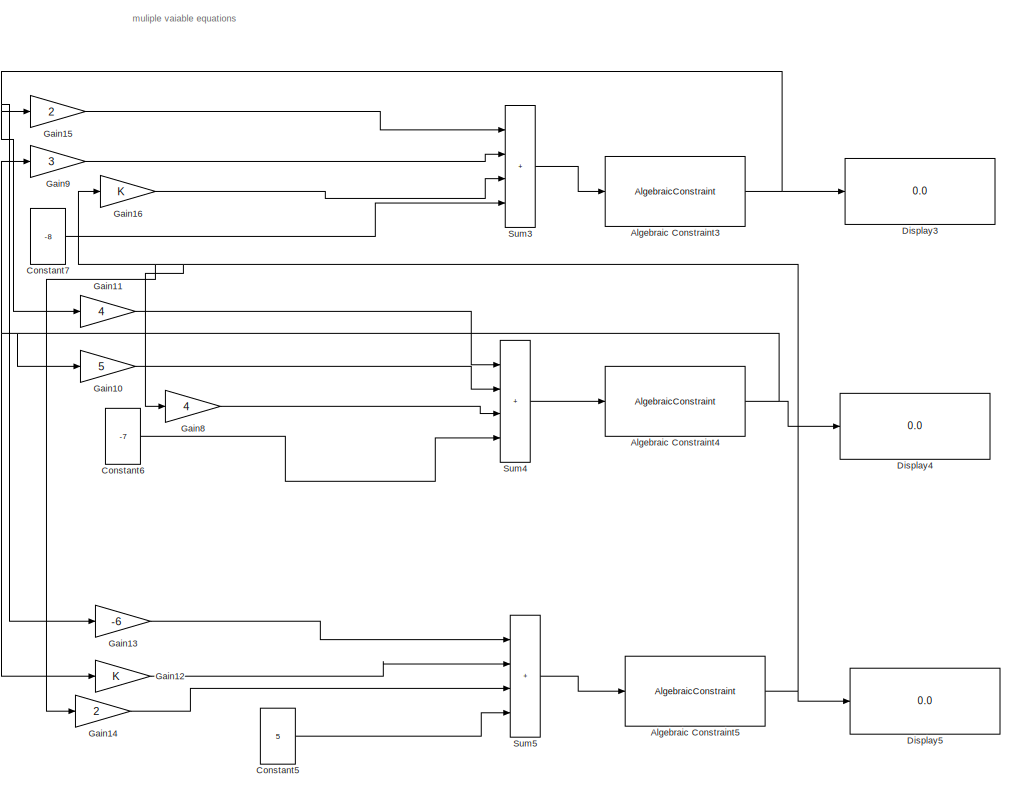
[diagram: root canvas - part 1/3, top right region]
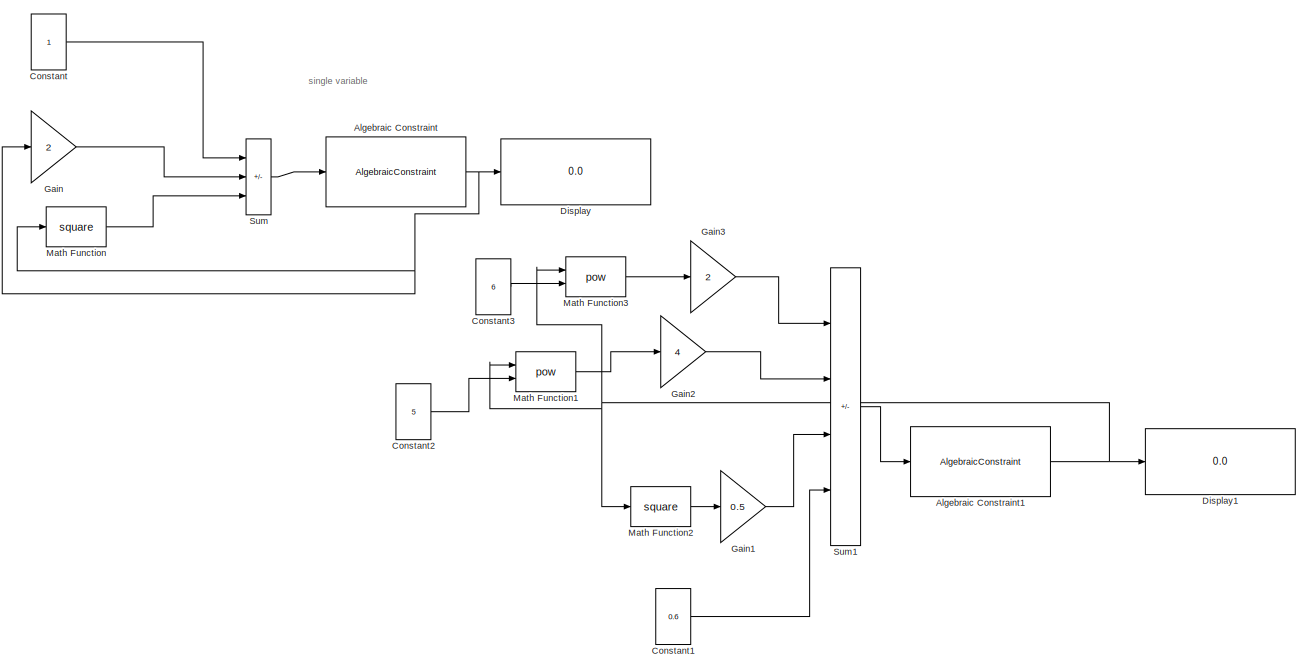
[diagram: root canvas - part 2/3, middle left region]
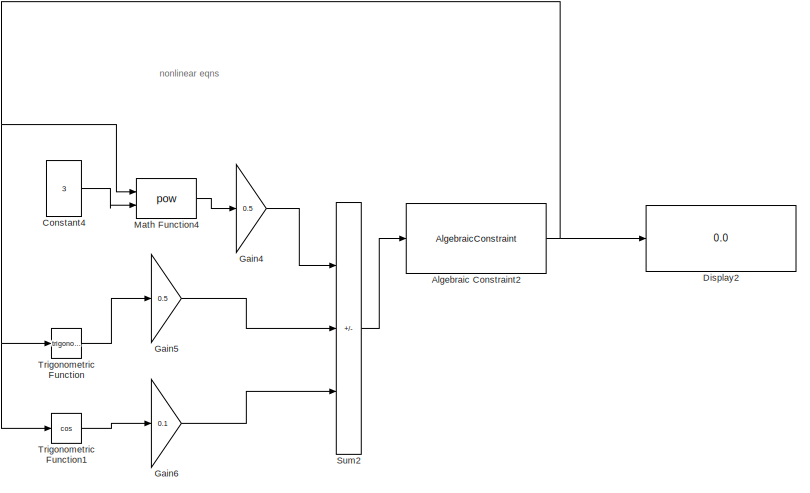
[diagram: root canvas - part 3/3, bottom center region]
MODEL slx_b16258f78fe9
KIND model
CONFIG AbsTol = auto
CONFIG EnableMultiTasking = off
CONFIG FixedStep = auto
CONFIG MaxStep = auto
CONFIG MinStep = auto
CONFIG RelTol = 1e-3
CONFIG SampleTimeConstraint = Unconstrained
CONFIG SolverName = VariableStepAuto
CONFIG StartTime = 0.0
CONFIG StopTime = 10.0
BLOCK [AlgebraicConstraint] Algebraic Constraint
BLOCK [AlgebraicConstraint] Algebraic Constraint1
BLOCK [AlgebraicConstraint] Algebraic Constraint2
BLOCK [AlgebraicConstraint] Algebraic Constraint3
BLOCK [AlgebraicConstraint] Algebraic Constraint4
BLOCK [AlgebraicConstraint] Algebraic Constraint5
BLOCK [Constant] Constant
BLOCK [Constant] Constant1
  Value = 0.6
BLOCK [Constant] Constant2
  Value = 5
BLOCK [Constant] Constant3
  Value = 6
BLOCK [Constant] Constant4
  Value = 3
BLOCK [Constant] Constant5
  Value = 5
BLOCK [Constant] Constant6
  Value = -7
BLOCK [Constant] Constant7
  Value = -8
BLOCK [Display] Display
  Decimation = 1
  Ports = [1]
BLOCK [Display] Display1
  Decimation = 1
  Ports = [1]
BLOCK [Display] Display2
  Decimation = 1
  Ports = [1]
BLOCK [Display] Display3
  Decimation = 1
  Ports = [1]
BLOCK [Display] Display4
  Decimation = 1
  Ports = [1]
BLOCK [Display] Display5
  Decimation = 1
  Ports = [1]
BLOCK [Gain] Gain
  Gain = 2
BLOCK [Gain] Gain1
  Gain = 0.5
BLOCK [Gain] Gain10
  Gain = 5
BLOCK [Gain] Gain11
  Gain = 4
BLOCK [Gain] Gain12
BLOCK [Gain] Gain13
  Gain = -6
BLOCK [Gain] Gain14
  Gain = 2
BLOCK [Gain] Gain15
  Gain = 2
BLOCK [Gain] Gain16
BLOCK [Gain] Gain2
  Gain = 4
BLOCK [Gain] Gain3
  Gain = 2
BLOCK [Gain] Gain4
  Gain = 0.5
BLOCK [Gain] Gain5
  Gain = 0.5
BLOCK [Gain] Gain6
  Gain = 0.1
BLOCK [Gain] Gain8
  Gain = 4
BLOCK [Gain] Gain9
  Gain = 3
BLOCK [Math] Math Function
  Operator = square
  Ports = [1, 1]
BLOCK [Math] Math Function1
  Operator = pow
  Ports = [2, 1]
  SignedPower = on
BLOCK [Math] Math Function2
  Operator = square
  OutputSignalType = real
  Ports = [1, 1]
  SignedPower = on
BLOCK [Math] Math Function3
  Operator = pow
  Ports = [2, 1]
  SignedPower = on
BLOCK [Math] Math Function4
  Operator = pow
  Ports = [2, 1]
  SignedPower = on
BLOCK [Sum] Sum
  IconShape = rectangular
  Inputs = +-+
  Ports = [3, 1]
BLOCK [Sum] Sum1
  IconShape = rectangular
  Inputs = +-+-
  Ports = [4, 1]
BLOCK [Sum] Sum2
  IconShape = rectangular
  Inputs = ++-
  Ports = [3, 1]
BLOCK [Sum] Sum3
  IconShape = rectangular
  Inputs = ++++
  Ports = [4, 1]
BLOCK [Sum] Sum4
  IconShape = rectangular
  Inputs = ++++
  Ports = [4, 1]
BLOCK [Sum] Sum5
  IconShape = rectangular
  Inputs = ++++
  Ports = [4, 1]
BLOCK [Trigonometry] Trigonometric Function
  Ports = [1, 1]
BLOCK [Trigonometry] Trigonometric Function1
  Operator = cos
  Ports = [1, 1]
ANNOTATION (root): muliple vaiable equations
ANNOTATION (root): nonlinear eqns
ANNOTATION (root): single variable
NET Algebraic Constraint1:1 -> Display1:1, Math Function1:1, Math Function2:1, Math Function3:1
NET Algebraic Constraint2:1 -> Display2:1, Math Function4:1, Trigonometric Function1:1, Trigonometric Function:1
NET Algebraic Constraint3:1 -> Display3:1, Gain11:1, Gain13:1, Gain15:1
NET Algebraic Constraint4:1 -> Display4:1, Gain10:1, Gain12:1, Gain9:1
NET Algebraic Constraint5:1 -> Display5:1, Gain14:1, Gain16:1, Gain8:1
NET Algebraic Constraint:1 -> Display:1, Gain:1, Math Function:1
LINE Constant1:1 -> Sum1:4
LINE Constant2:1 -> Math Function1:2
LINE Constant3:1 -> Math Function3:2
LINE Constant4:1 -> Math Function4:2
LINE Constant5:1 -> Sum5:4
LINE Constant6:1 -> Sum4:4
LINE Constant7:1 -> Sum3:4
LINE Constant:1 -> Sum:1
LINE Gain10:1 -> Sum4:2
LINE Gain11:1 -> Sum4:1
LINE Gain12:1 -> Sum5:2
LINE Gain13:1 -> Sum5:1
LINE Gain14:1 -> Sum5:3
LINE Gain15:1 -> Sum3:1
LINE Gain16:1 -> Sum3:3
LINE Gain1:1 -> Sum1:3
LINE Gain2:1 -> Sum1:2
LINE Gain3:1 -> Sum1:1
LINE Gain4:1 -> Sum2:1
LINE Gain5:1 -> Sum2:2
LINE Gain6:1 -> Sum2:3
LINE Gain8:1 -> Sum4:3
LINE Gain9:1 -> Sum3:2
LINE Gain:1 -> Sum:2
LINE Math Function1:1 -> Gain2:1
LINE Math Function2:1 -> Gain1:1
LINE Math Function3:1 -> Gain3:1
LINE Math Function4:1 -> Gain4:1
LINE Math Function:1 -> Sum:3
LINE Sum1:1 -> Algebraic Constraint1:1
LINE Sum2:1 -> Algebraic Constraint2:1
LINE Sum3:1 -> Algebraic Constraint3:1
LINE Sum4:1 -> Algebraic Constraint4:1
LINE Sum5:1 -> Algebraic Constraint5:1
LINE Sum:1 -> Algebraic Constraint:1
LINE Trigonometric Function1:1 -> Gain6:1
LINE Trigonometric Function:1 -> Gain5:1
note: NET lines group one-source signal fan-out (src -> all destinations, sorted); 1:1 wires keep LINE
